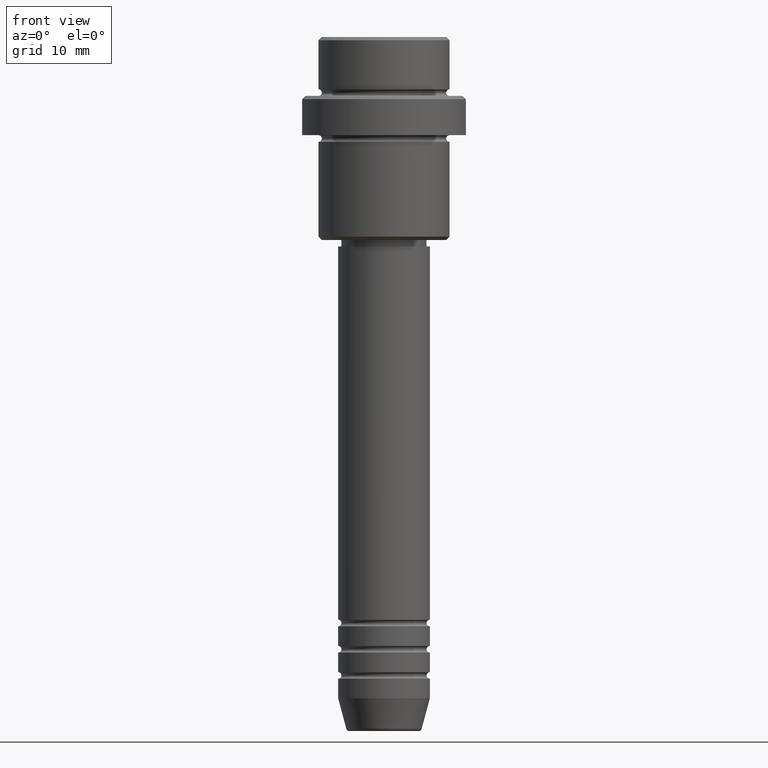
[diagram: clean part render]
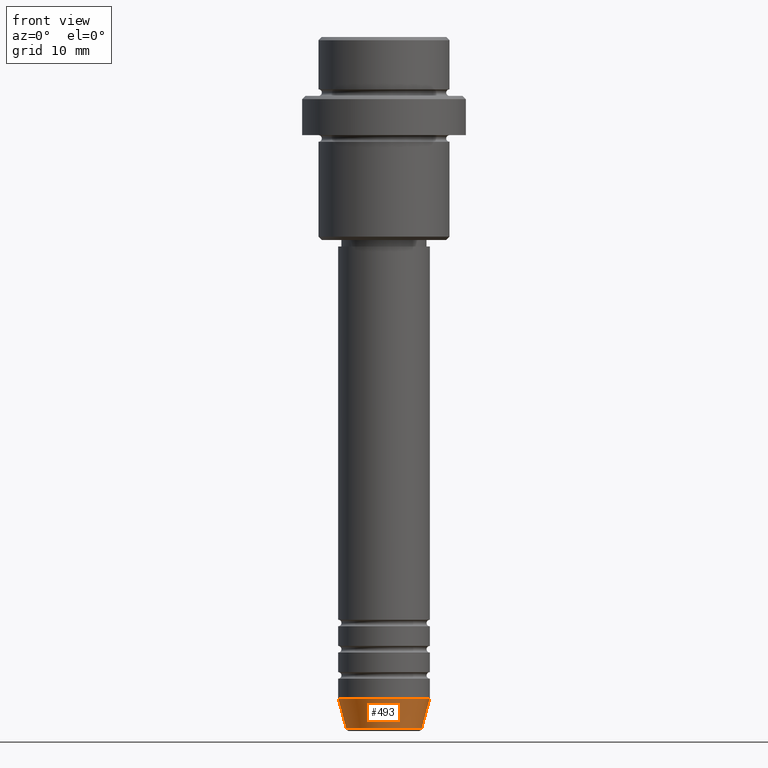
[diagram: same view with one face highlighted and labeled with its STEP entity id]
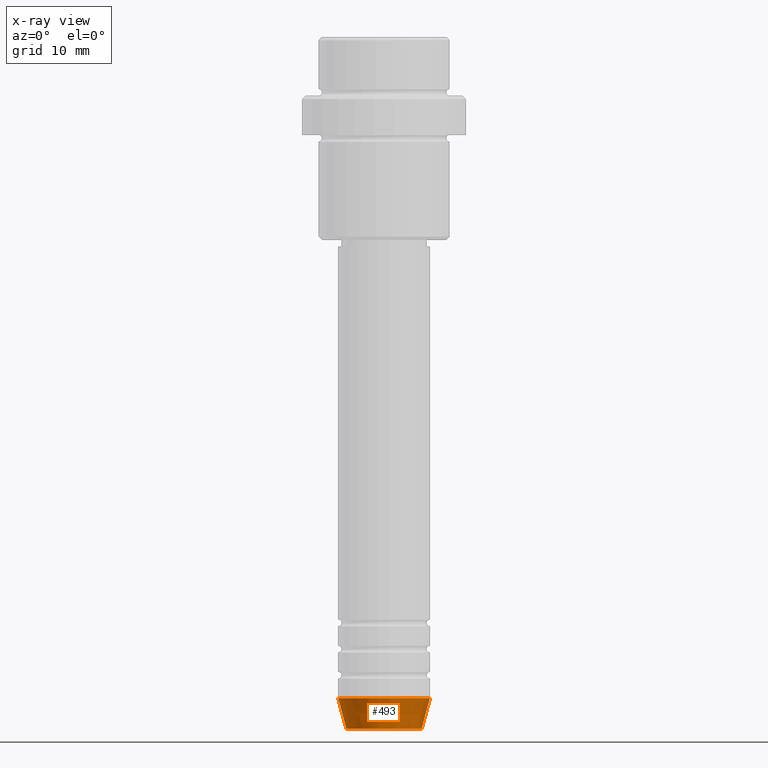
[diagram: x-ray of the same camera — body ghosted, the highlighted face saturated]
A machine part, front view. The second image highlights one B-rep face of the part: STEP entity #493.
The next image is the same camera in x-ray: the body ghosted, the highlighted face saturated — about 0% of this face is hidden behind the body in this view.
In plain terms, the highlighted conical surface has half-angle 15 deg.
Its self-contained STEP definition (entity closure, byte-faithful):
#17 = ORIENTED_EDGE ( 'NONE', *, *, #1325, .T. ) ;
#43 = CARTESIAN_POINT ( 'NONE',  ( 0.000000000000000000, 0.000000000000000000, -105.6294095225512564 ) ) ;
#105 = FACE_OUTER_BOUND ( 'NONE', #1054, .T. ) ;
#178 = AXIS2_PLACEMENT_3D ( 'NONE', #1081, #1189, #744 ) ;
#211 = CARTESIAN_POINT ( 'NONE',  ( -7.000000000000000000, 8.572527594031473190E-16, -101.0000000000000000 ) ) ;
#255 = CIRCLE ( 'NONE', #1052, 7.000000000000000000 ) ;
#350 = LINE ( 'NONE', #885, #1034 ) ;
#384 = DIRECTION ( 'NONE',  ( 1.000000000000000000, 0.000000000000000000, 0.000000000000000000 ) ) ;
#416 = CARTESIAN_POINT ( 'NONE',  ( -7.000000000000000000, 8.572527594031473190E-16, -101.0000000000000000 ) ) ;
#436 = ORIENTED_EDGE ( 'NONE', *, *, #928, .F. ) ;
#493 = ADVANCED_FACE ( 'NONE', ( #105 ), #1050, .T. ) ;
#496 = DIRECTION ( 'NONE',  ( 1.000000000000000000, 0.000000000000000000, 0.000000000000000000 ) ) ;
#532 = CARTESIAN_POINT ( 'NONE',  ( 5.759553456999435994, 0.000000000000000000, -105.6294095225512564 ) ) ;
#550 = VERTEX_POINT ( 'NONE', #1344 ) ;
#580 = DIRECTION ( 'NONE',  ( 0.2588190451025213501, 0.000000000000000000, 0.9659258262890680902 ) ) ;
#633 = CIRCLE ( 'NONE', #833, 5.759553456999435994 ) ;
#703 = DIRECTION ( 'NONE',  ( -0.000000000000000000, -0.000000000000000000, 1.000000000000000000 ) ) ;
#708 = CARTESIAN_POINT ( 'NONE',  ( -5.759553456999435994, 7.812973149831951773E-16, -105.6294095225512564 ) ) ;
#710 = CARTESIAN_POINT ( 'NONE',  ( 0.000000000000000000, 0.000000000000000000, -101.0000000000000000 ) ) ;
#744 = DIRECTION ( 'NONE',  ( 1.000000000000000000, 0.000000000000000000, 0.000000000000000000 ) ) ;
#757 = EDGE_CURVE ( 'NONE', #1349, #955, #1065, .T. ) ;
#815 = EDGE_CURVE ( 'NONE', #1411, #550, #350, .T. ) ;
#833 = AXIS2_PLACEMENT_3D ( 'NONE', #43, #926, #496 ) ;
#885 = CARTESIAN_POINT ( 'NONE',  ( 7.000000000000000000, 0.000000000000000000, -101.0000000000000000 ) ) ;
#926 = DIRECTION ( 'NONE',  ( -0.000000000000000000, -0.000000000000000000, 1.000000000000000000 ) ) ;
#928 = EDGE_CURVE ( 'NONE', #955, #550, #255, .T. ) ;
#955 = VERTEX_POINT ( 'NONE', #416 ) ;
#1034 = VECTOR ( 'NONE', #580, 1000.000000000000000 ) ;
#1050 = CONICAL_SURFACE ( 'NONE', #178, 7.000000000000000000, 0.2617993877991500740 ) ;
#1052 = AXIS2_PLACEMENT_3D ( 'NONE', #710, #703, #384 ) ;
#1054 = EDGE_LOOP ( 'NONE', ( #1386, #17, #1286, #436 ) ) ;
#1065 = LINE ( 'NONE', #211, #1102 ) ;
#1081 = CARTESIAN_POINT ( 'NONE',  ( 0.000000000000000000, 0.000000000000000000, -101.0000000000000000 ) ) ;
#1102 = VECTOR ( 'NONE', #1319, 1000.000000000000000 ) ;
#1189 = DIRECTION ( 'NONE',  ( -0.000000000000000000, -0.000000000000000000, 1.000000000000000000 ) ) ;
#1286 = ORIENTED_EDGE ( 'NONE', *, *, #815, .T. ) ;
#1319 = DIRECTION ( 'NONE',  ( -0.2588190451025213501, 3.169619151431772337E-17, 0.9659258262890680902 ) ) ;
#1325 = EDGE_CURVE ( 'NONE', #1349, #1411, #633, .T. ) ;
#1344 = CARTESIAN_POINT ( 'NONE',  ( 7.000000000000000000, 0.000000000000000000, -101.0000000000000000 ) ) ;
#1349 = VERTEX_POINT ( 'NONE', #708 ) ;
#1386 = ORIENTED_EDGE ( 'NONE', *, *, #757, .F. ) ;
#1411 = VERTEX_POINT ( 'NONE', #532 ) ;